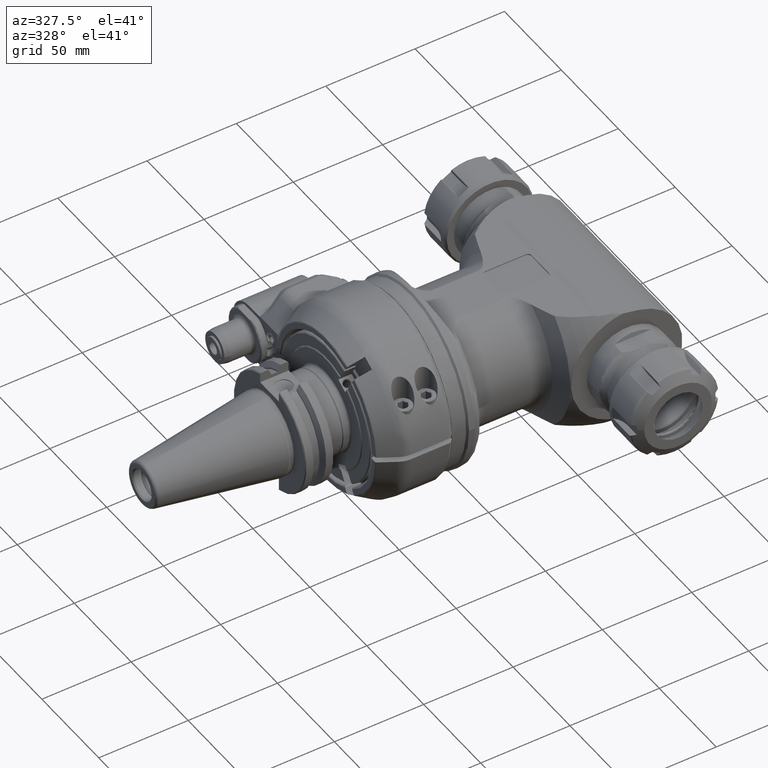
[diagram: clean part render]
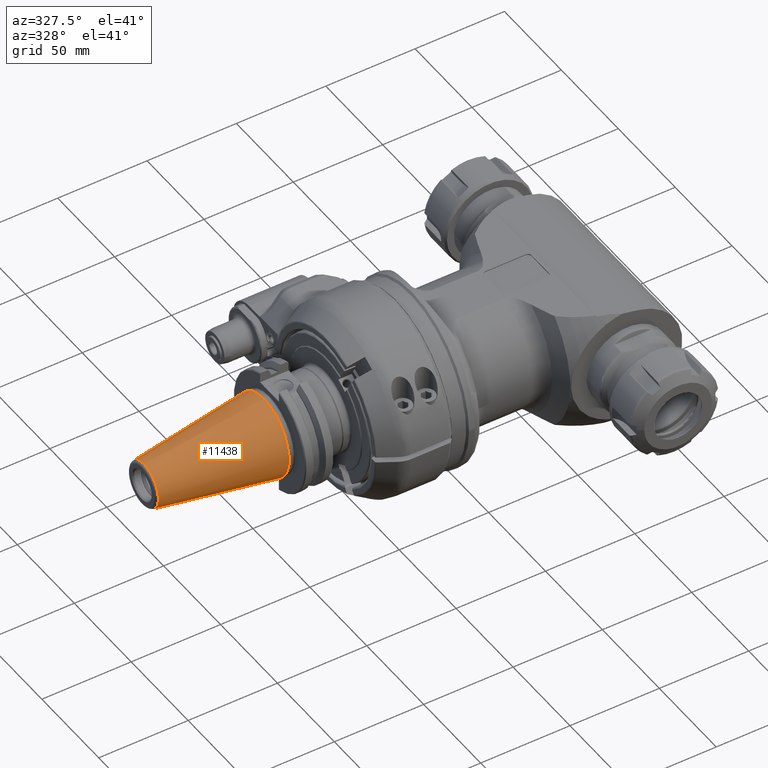
[diagram: same view with one face highlighted and labeled with its STEP entity id]
A machine part, auxiliary view. The second image highlights one B-rep face of the part: STEP entity #11438.
In plain terms, the highlighted conical surface has half-angle 8.297 deg.
Its self-contained STEP definition (entity closure, byte-faithful):
#591=CONICAL_SURFACE('',#12741,17.34203190906,0.144812411498922);
#1221=LINE('',#28803,#1895);
#1895=VECTOR('',#15923,17.34203190906);
#2873=FACE_OUTER_BOUND('',#3616,.T.);
#3616=EDGE_LOOP('',(#10299,#10300,#10301,#10302,#10303));
#4237=CIRCLE('',#12740,22.225);
#4238=CIRCLE('',#12742,12.45906381812);
#4239=CIRCLE('',#12743,12.45906381812);
#5329=VERTEX_POINT('',#28798);
#5330=VERTEX_POINT('',#28802);
#5331=VERTEX_POINT('',#28804);
#6998=EDGE_CURVE('',#5329,#5329,#4237,.T.);
#7000=EDGE_CURVE('',#5329,#5330,#1221,.T.);
#7001=EDGE_CURVE('',#5331,#5330,#4238,.T.);
#7002=EDGE_CURVE('',#5330,#5331,#4239,.T.);
#10299=ORIENTED_EDGE('',*,*,#6998,.F.);
#10300=ORIENTED_EDGE('',*,*,#7000,.T.);
#10301=ORIENTED_EDGE('',*,*,#7001,.F.);
#10302=ORIENTED_EDGE('',*,*,#7002,.F.);
#10303=ORIENTED_EDGE('',*,*,#7000,.F.);
#11438=ADVANCED_FACE('',(#2873),#591,.T.);
#12740=AXIS2_PLACEMENT_3D('',#28799,#15918,#15919);
#12741=AXIS2_PLACEMENT_3D('',#28801,#15921,#15922);
#12742=AXIS2_PLACEMENT_3D('',#28805,#15924,#15925);
#12743=AXIS2_PLACEMENT_3D('',#28806,#15926,#15927);
#15918=DIRECTION('center_axis',(1.,0.,0.));
#15919=DIRECTION('ref_axis',(0.,0.,1.));
#15921=DIRECTION('center_axis',(1.,0.,0.));
#15922=DIRECTION('ref_axis',(0.,0.,-1.));
#15923=DIRECTION('',(-0.98953299358046,1.76724869581176E-17,-0.144306807239621));
#15924=DIRECTION('center_axis',(-1.,0.,0.));
#15925=DIRECTION('ref_axis',(0.,0.,1.));
#15926=DIRECTION('center_axis',(-1.,0.,0.));
#15927=DIRECTION('ref_axis',(0.,0.,1.));
#28798=CARTESIAN_POINT('',(106.063097,2.72177751110521E-15,22.2250000000017));
#28799=CARTESIAN_POINT('Origin',(106.063097,0.,0.));
#28801=CARTESIAN_POINT('Origin',(72.57986689457,0.,0.));
#28802=CARTESIAN_POINT('',(39.09663678914,0.,12.45906381812));
#28803=CARTESIAN_POINT('',(72.57986689457,-2.12378638681416E-15,17.34203190906));
#28804=CARTESIAN_POINT('',(39.09663678914,1.52579526252333E-15,-12.45906381812));
#28805=CARTESIAN_POINT('Origin',(39.09663678914,0.,0.));
#28806=CARTESIAN_POINT('Origin',(39.09663678914,0.,0.));